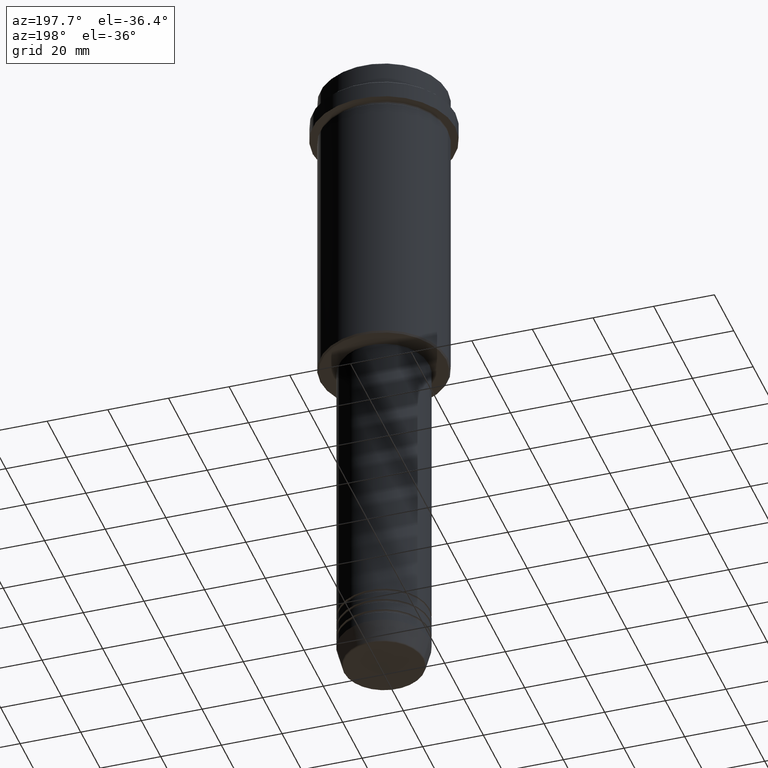
[diagram: clean part render]
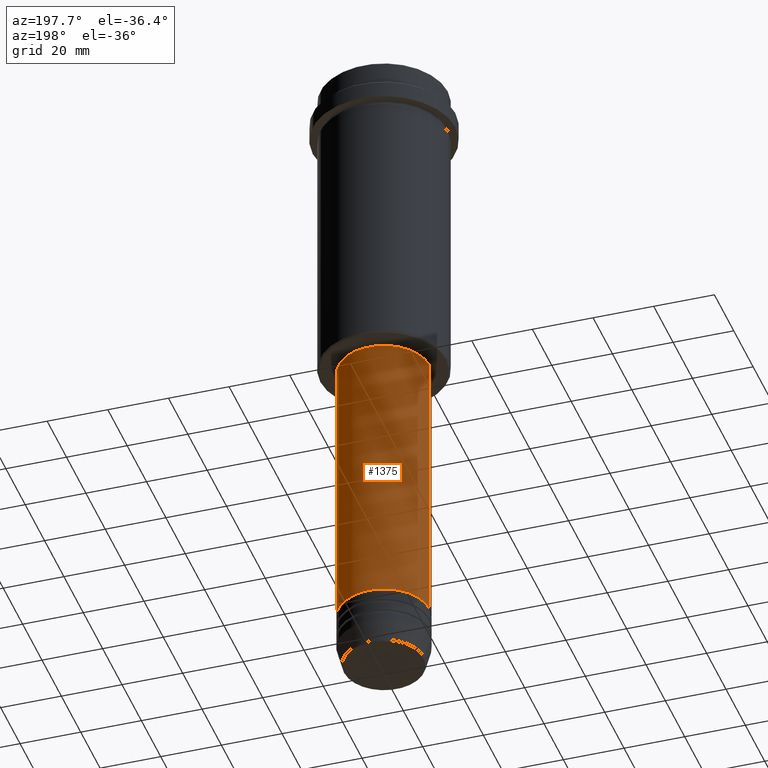
[diagram: same view with one face highlighted and labeled with its STEP entity id]
A machine part, auxiliary view. The second image highlights one B-rep face of the part: STEP entity #1375.
In plain terms, the highlighted cylindrical surface (partial cylindrical patch) has radius 15 mm, axis along (-0, -0, 1).
Its self-contained STEP definition (entity closure, byte-faithful):
#5 = EDGE_CURVE ( 'NONE', #443, #866, #613, .T. ) ;
#13 = CIRCLE ( 'NONE', #459, 15.00000000000000000 ) ;
#15 = DIRECTION ( 'NONE',  ( 1.000000000000000000, 0.000000000000000000, 0.000000000000000000 ) ) ;
#83 = VECTOR ( 'NONE', #271, 1000.000000000000000 ) ;
#104 = ORIENTED_EDGE ( 'NONE', *, *, #1132, .F. ) ;
#137 = CARTESIAN_POINT ( 'NONE',  ( 0.000000000000000000, 0.000000000000000000, 0.000000000000000000 ) ) ;
#207 = DIRECTION ( 'NONE',  ( -0.000000000000000000, -0.000000000000000000, 1.000000000000000000 ) ) ;
#217 = AXIS2_PLACEMENT_3D ( 'NONE', #304, #207, #435 ) ;
#233 = CARTESIAN_POINT ( 'NONE',  ( 15.00000000000000000, 0.000000000000000000, -106.0000000000000284 ) ) ;
#271 = DIRECTION ( 'NONE',  ( -0.000000000000000000, -0.000000000000000000, 1.000000000000000000 ) ) ;
#304 = CARTESIAN_POINT ( 'NONE',  ( 0.000000000000000000, 0.000000000000000000, -106.0000000000000284 ) ) ;
#367 = CARTESIAN_POINT ( 'NONE',  ( -15.00000000000000000, 1.836970198721029589E-15, -200.9999999999999147 ) ) ;
#381 = VERTEX_POINT ( 'NONE', #233 ) ;
#405 = CARTESIAN_POINT ( 'NONE',  ( 15.00000000000000000, 0.000000000000000000, 0.000000000000000000 ) ) ;
#416 = DIRECTION ( 'NONE',  ( -0.000000000000000000, -0.000000000000000000, 1.000000000000000000 ) ) ;
#426 = EDGE_CURVE ( 'NONE', #434, #381, #1026, .T. ) ;
#434 = VERTEX_POINT ( 'NONE', #693 ) ;
#435 = DIRECTION ( 'NONE',  ( 1.000000000000000000, 0.000000000000000000, 0.000000000000000000 ) ) ;
#443 = VERTEX_POINT ( 'NONE', #367 ) ;
#459 = AXIS2_PLACEMENT_3D ( 'NONE', #961, #416, #848 ) ;
#477 = CARTESIAN_POINT ( 'NONE',  ( -15.00000000000000000, 1.836970198721029589E-15, -106.0000000000000284 ) ) ;
#486 = DIRECTION ( 'NONE',  ( -0.000000000000000000, -0.000000000000000000, 1.000000000000000000 ) ) ;
#563 = DIRECTION ( 'NONE',  ( -0.000000000000000000, -0.000000000000000000, 1.000000000000000000 ) ) ;
#587 = ORIENTED_EDGE ( 'NONE', *, *, #426, .F. ) ;
#613 = LINE ( 'NONE', #828, #83 ) ;
#633 = EDGE_CURVE ( 'NONE', #434, #443, #13, .T. ) ;
#687 = ORIENTED_EDGE ( 'NONE', *, *, #633, .T. ) ;
#693 = CARTESIAN_POINT ( 'NONE',  ( 15.00000000000000000, 0.000000000000000000, -200.9999999999999147 ) ) ;
#828 = CARTESIAN_POINT ( 'NONE',  ( -15.00000000000000000, 1.836970198721029589E-15, 0.000000000000000000 ) ) ;
#830 = CIRCLE ( 'NONE', #217, 15.00000000000000000 ) ;
#848 = DIRECTION ( 'NONE',  ( 1.000000000000000000, 0.000000000000000000, 0.000000000000000000 ) ) ;
#861 = EDGE_LOOP ( 'NONE', ( #687, #1244, #104, #587 ) ) ;
#866 = VERTEX_POINT ( 'NONE', #477 ) ;
#961 = CARTESIAN_POINT ( 'NONE',  ( 0.000000000000000000, 0.000000000000000000, -200.9999999999999147 ) ) ;
#987 = VECTOR ( 'NONE', #486, 1000.000000000000000 ) ;
#1026 = LINE ( 'NONE', #405, #987 ) ;
#1085 = AXIS2_PLACEMENT_3D ( 'NONE', #137, #563, #15 ) ;
#1116 = FACE_OUTER_BOUND ( 'NONE', #861, .T. ) ;
#1132 = EDGE_CURVE ( 'NONE', #381, #866, #830, .T. ) ;
#1244 = ORIENTED_EDGE ( 'NONE', *, *, #5, .T. ) ;
#1375 = ADVANCED_FACE ( 'NONE', ( #1116 ), #1411, .T. ) ;
#1411 = CYLINDRICAL_SURFACE ( 'NONE', #1085, 15.00000000000000000 ) ;